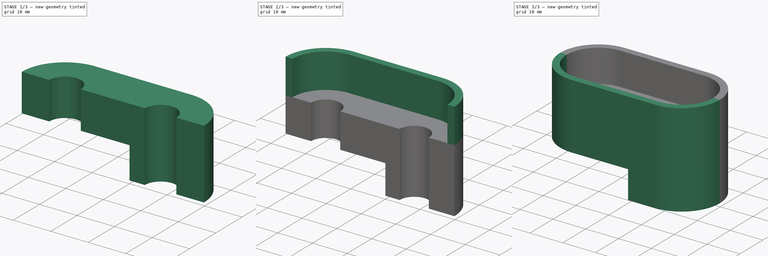
[diagram: build sequence overview — one tinted view per stage of 3, left to right]
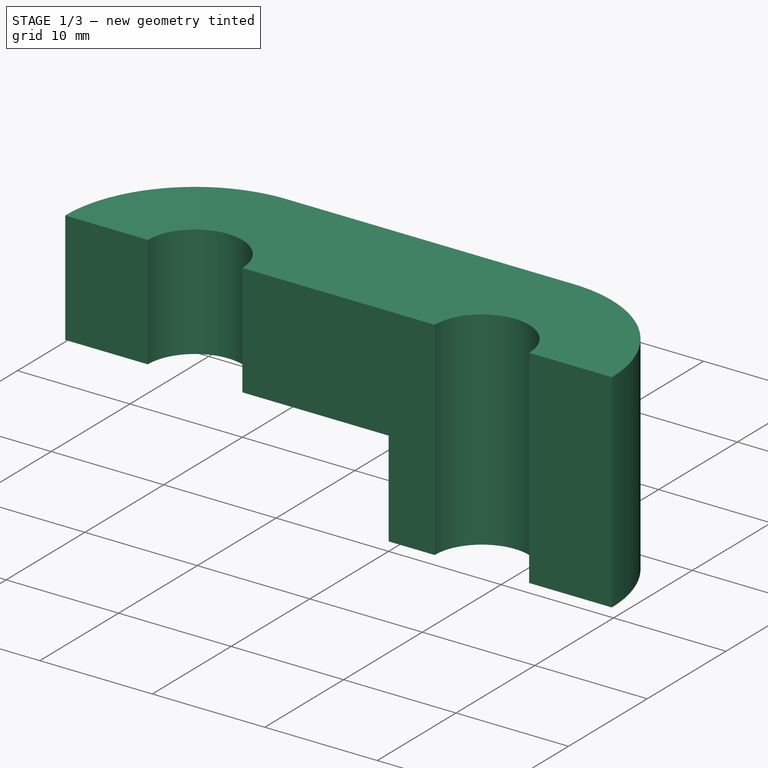
[diagram: stage 1 of 3 — iso view after this stage's code; geometry added in this stage tinted green]
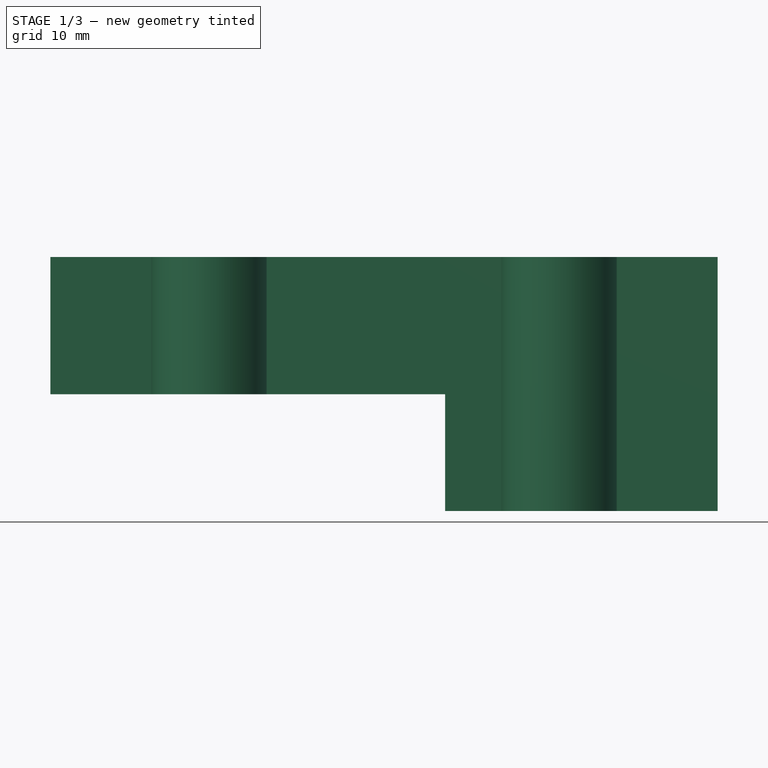
[diagram: stage 1 of 3 — front view after this stage's code; geometry added in this stage tinted green]
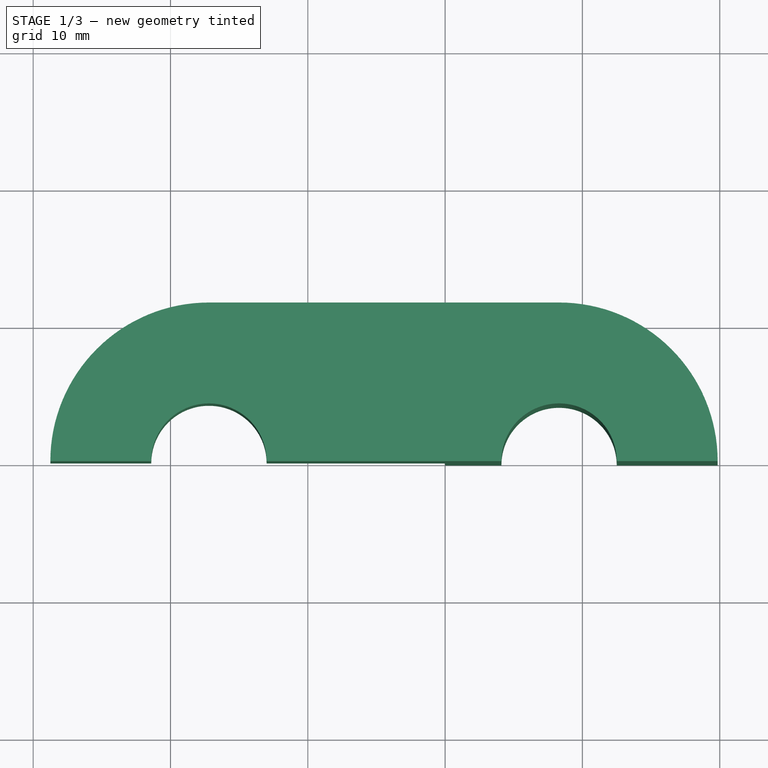
[diagram: stage 1 of 3 — top view after this stage's code; geometry added in this stage tinted green]
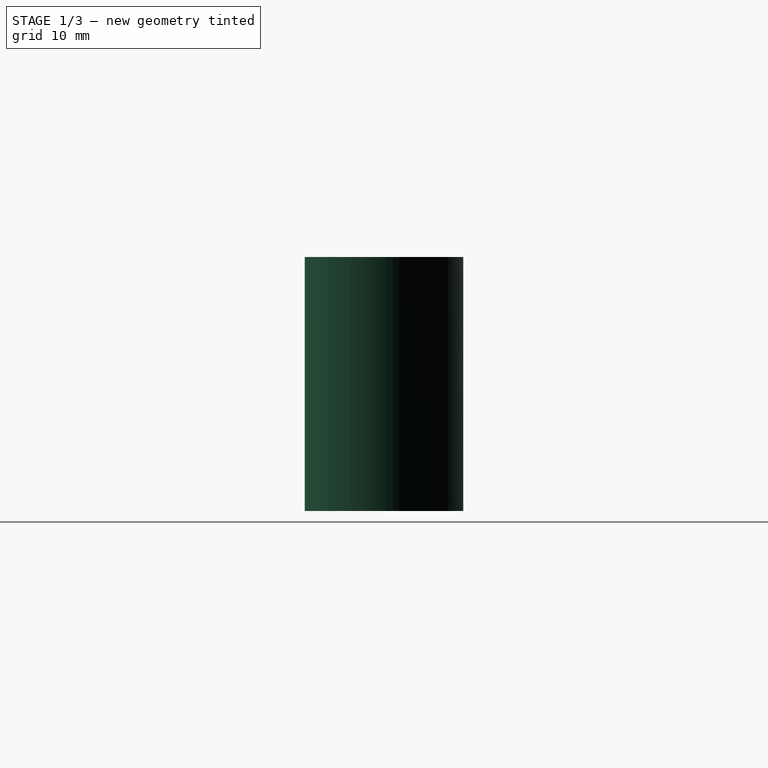
[diagram: stage 1 of 3 — right view after this stage's code; geometry added in this stage tinted green]
FCSTD DOCUMENT  (FreeCAD 0.19R24291 (Git))
Label: Крепление подшипника Стаканы
License: All rights reserved
LicenseURL: http://en.wikipedia.org/wiki/All_rights_reserved
objects: Sketcher::SketchObject×5, PartDesign::Pad×3, PartDesign::Pocket×1, PartDesign::Mirrored×1, PartDesign::Body×1
note: 15 computed .brp shape members not serialized (recipe doc carries the construction recipe); baked Part::Feature solids carry a one-line shape summary decoded from their .brp

FEATURE [Sketcher::SketchObject] Sketch
  FullyConstrained = true
  MapMode = 5
  Support = -> [XY_Plane]
  sketch-geometry (12):
    g0: ArcOfCircle CenterX=-17.2 CenterY=0 CenterZ=0 NormalX=0 NormalY=0 NormalZ=1 AngleXU=0 Radius=4.2 StartAngle=0 EndAngle=3.14159
    g1: ArcOfCircle CenterX=8.3 CenterY=0 CenterZ=0 NormalX=0 NormalY=0 NormalZ=1 AngleXU=0 Radius=4.2 StartAngle=0 EndAngle=3.14159
    g2: LineSegment StartX=0 StartY=0 StartZ=0 EndX=-13 EndY=0 EndZ=0
    g3: LineSegment StartX=-17.2 StartY=11.55 StartZ=0 EndX=0 EndY=11.55 EndZ=0
    g4: LineSegment StartX=0 StartY=11.55 StartZ=0 EndX=0 EndY=0 EndZ=0
    g5: LineSegment StartX=0 StartY=0 StartZ=0 EndX=4.1 EndY=0 EndZ=0
    g6: LineSegment StartX=8.30002 StartY=11.55 StartZ=0 EndX=0 EndY=11.55 EndZ=0
    g7: LineSegment StartX=0 StartY=11.55 StartZ=0 EndX=0 EndY=0 EndZ=0
    g8: LineSegment StartX=12.5 StartY=0 StartZ=0 EndX=19.85 EndY=0 EndZ=0
    g9: LineSegment StartX=-21.4 StartY=0 StartZ=0 EndX=-28.75 EndY=1.4e-15 EndZ=0
    g10: ArcOfCircle CenterX=-17.2 CenterY=0 CenterZ=0 NormalX=0 NormalY=0 NormalZ=1 AngleXU=0 Radius=11.55 StartAngle=1.5708 EndAngle=3.14159
    g11: ArcOfCircle CenterX=8.3 CenterY=0 CenterZ=0 NormalX=0 NormalY=0 NormalZ=1 AngleXU=0 Radius=11.55 StartAngle=0 EndAngle=1.57079
  constraints (37):
    c: PointOnObject(g0,g-1)
    c: PointOnObject(g0,g-1)
    c: PointOnObject(g0,g-1)
    c: PointOnObject(g1,g-1)
    c: PointOnObject(g1,g-1)
    c: PointOnObject(g1,g-1)
    c: Coincident(g3,g4)
    c: Coincident(g4,g2)
    c: Horizontal(g2)
    c: Horizontal(g3)
    c: Vertical(g4)
    c: Coincident(g2,g-1)
    c: Coincident(g6,g7)
    c: Coincident(g7,g5)
    c: Horizontal(g5)
    c: Horizontal(g6)
    c: Coincident(g5,g2)
    c: Coincident(g3,g6)
    c: PointOnObject(g5,g1)
    c: PointOnObject(g8,g1)
    c: Tangent(g5,g8)
    c: PointOnObject(g2,g0)
    c: PointOnObject(g9,g0)
    c: Tangent(g2,g9)
    c: Equal(g1,g0)
    c: Diameter(g1) = 8.4
    c: Distance(g1,g0) = 25.5
    c: Distance(g1,g-2) = 8.3
    c: Coincident(g10,g3)
    c: Coincident(g10,g9)
    c: Tangent(g10,g3)
    c: Coincident(g10,g0)
    c: Distance(g4) = 11.55
    c: Coincident(g11,g1)
    c: Coincident(g11,g6)
    c: Coincident(g8,g11)
    c: Tangent(g6,g11)
FEATURE [Sketcher::SketchObject] Sketch001
  FullyConstrained = true
  MapMode = 5
  Support = -> [XY_Plane]
  expr: Constraints[25] = Sketch.Constraints[25]
  expr: Constraints[26] = Sketch.Constraints[26]
  expr: Constraints[32] = Sketch.Constraints[32]
  expr: Constraints[27] = Sketch.Constraints[27]
  sketch-geometry (12):
    g0: ArcOfCircle CenterX=-17.2 CenterY=0 CenterZ=0 NormalX=0 NormalY=0 NormalZ=1 AngleXU=0 Radius=4.2 StartAngle=0 EndAngle=3.14159
    g1: ArcOfCircle CenterX=8.3 CenterY=0 CenterZ=0 NormalX=0 NormalY=0 NormalZ=1 AngleXU=0 Radius=4.2 StartAngle=0 EndAngle=3.14159
    g2: LineSegment StartX=0 StartY=0 StartZ=0 EndX=-13 EndY=0 EndZ=0
    g3: LineSegment StartX=-17.2 StartY=11.55 StartZ=0 EndX=0 EndY=11.55 EndZ=0
    g4: LineSegment StartX=0 StartY=11.55 StartZ=0 EndX=0 EndY=0 EndZ=0
    g5: LineSegment StartX=0 StartY=0 StartZ=0 EndX=4.1 EndY=0 EndZ=0
    g6: LineSegment StartX=8.30002 StartY=11.55 StartZ=0 EndX=0 EndY=11.55 EndZ=0
    g7: LineSegment StartX=0 StartY=11.55 StartZ=0 EndX=0 EndY=0 EndZ=0
    g8: LineSegment StartX=12.5 StartY=0 StartZ=0 EndX=19.85 EndY=0 EndZ=0
    g9: LineSegment StartX=-21.4 StartY=0 StartZ=0 EndX=-28.75 EndY=0 EndZ=0
    g10: ArcOfCircle CenterX=-17.2 CenterY=0 CenterZ=0 NormalX=0 NormalY=0 NormalZ=1 AngleXU=0 Radius=11.55 StartAngle=1.5708 EndAngle=3.14159
    g11: ArcOfCircle CenterX=8.3 CenterY=0 CenterZ=0 NormalX=0 NormalY=0 NormalZ=1 AngleXU=0 Radius=11.55 StartAngle=0 EndAngle=1.57079
  constraints (37):
    c: PointOnObject(g0,g-1)
    c: PointOnObject(g0,g-1)
    c: PointOnObject(g0,g-1)
    c: PointOnObject(g1,g-1)
    c: PointOnObject(g1,g-1)
    c: PointOnObject(g1,g-1)
    c: Coincident(g3,g4)
    c: Coincident(g4,g2)
    c: Horizontal(g2)
    c: Horizontal(g3)
    c: Vertical(g4)
    c: Coincident(g2,g-1)
    c: Coincident(g6,g7)
    c: Coincident(g7,g5)
    c: Horizontal(g5)
    c: Horizontal(g6)
    c: Coincident(g5,g2)
    c: Coincident(g3,g6)
    c: PointOnObject(g5,g1)
    c: PointOnObject(g8,g1)
    c: Tangent(g5,g8)
    c: PointOnObject(g2,g0)
    c: PointOnObject(g9,g0)
    c: Tangent(g2,g9)
    c: Equal(g1,g0)
    c: Diameter(g1) = 8.4
    c: Distance(g1,g0) = 25.5
    c: Distance(g1,g-2) = 8.3
    c: Coincident(g10,g3)
    c: Coincident(g10,g9)
    c: Tangent(g10,g3)
    c: Coincident(g10,g0)
    c: Distance(g4) = 11.55
    c: Coincident(g11,g1)
    c: Coincident(g11,g6)
    c: Coincident(g8,g11)
    c: Tangent(g6,g11)
FEATURE [Sketcher::SketchObject] Sketch002
  FullyConstrained = true
  MapMode = 5
  Support = -> [XY_Plane]
  expr: Constraints[25] = Sketch.Constraints[25]
  expr: Constraints[26] = Sketch.Constraints[26]
  expr: Constraints[32] = Sketch.Constraints[32]
  expr: Constraints[27] = Sketch.Constraints[27]
  sketch-geometry (12):
    g0: ArcOfCircle CenterX=-17.2 CenterY=0 CenterZ=0 NormalX=0 NormalY=0 NormalZ=1 AngleXU=0 Radius=4.2 StartAngle=0 EndAngle=3.14159
    g1: ArcOfCircle CenterX=8.3 CenterY=0 CenterZ=0 NormalX=0 NormalY=0 NormalZ=1 AngleXU=0 Radius=4.2 StartAngle=0 EndAngle=3.14159
    g2: LineSegment StartX=0 StartY=0 StartZ=0 EndX=-13 EndY=0 EndZ=0
    g3: LineSegment StartX=-17.2 StartY=11.55 StartZ=0 EndX=0 EndY=11.55 EndZ=0
    g4: LineSegment StartX=0 StartY=11.55 StartZ=0 EndX=0 EndY=0 EndZ=0
    g5: LineSegment StartX=0 StartY=0 StartZ=0 EndX=4.1 EndY=0 EndZ=0
    g6: LineSegment StartX=8.30002 StartY=11.55 StartZ=0 EndX=0 EndY=11.55 EndZ=0
    g7: LineSegment StartX=0 StartY=11.55 StartZ=0 EndX=0 EndY=0 EndZ=0
    g8: LineSegment StartX=12.5 StartY=0 StartZ=0 EndX=19.85 EndY=0 EndZ=0
    g9: LineSegment StartX=-21.4 StartY=0 StartZ=0 EndX=-28.75 EndY=1.4e-15 EndZ=0
    g10: ArcOfCircle CenterX=-17.2 CenterY=0 CenterZ=0 NormalX=0 NormalY=0 NormalZ=1 AngleXU=0 Radius=11.55 StartAngle=1.5708 EndAngle=3.14159
    g11: ArcOfCircle CenterX=8.3 CenterY=0 CenterZ=0 NormalX=0 NormalY=0 NormalZ=1 AngleXU=0 Radius=11.55 StartAngle=0 EndAngle=1.57079
  constraints (37):
    c: PointOnObject(g0,g-1)
    c: PointOnObject(g0,g-1)
    c: PointOnObject(g0,g-1)
    c: PointOnObject(g1,g-1)
    c: PointOnObject(g1,g-1)
    c: PointOnObject(g1,g-1)
    c: Coincident(g3,g4)
    c: Coincident(g4,g2)
    c: Horizontal(g2)
    c: Horizontal(g3)
    c: Vertical(g4)
    c: Coincident(g2,g-1)
    c: Coincident(g6,g7)
    c: Coincident(g7,g5)
    c: Horizontal(g5)
    c: Horizontal(g6)
    c: Coincident(g5,g2)
    c: Coincident(g3,g6)
    c: PointOnObject(g5,g1)
    c: PointOnObject(g8,g1)
    c: Tangent(g5,g8)
    c: PointOnObject(g2,g0)
    c: PointOnObject(g9,g0)
    c: Tangent(g2,g9)
    c: Equal(g1,g0)
    c: Diameter(g1) = 8.4
    c: Distance(g1,g0) = 25.5
    c: Distance(g1,g-2) = 8.3
    c: Coincident(g10,g3)
    c: Coincident(g10,g9)
    c: Tangent(g10,g3)
    c: Coincident(g10,g0)
    c: Distance(g4) = 11.55
    c: Coincident(g11,g1)
    c: Coincident(g11,g6)
    c: Coincident(g8,g11)
    c: Tangent(g6,g11)
FEATURE [PartDesign::Pad] Pad
  Direction = (1,1,1)
  Length = 18.5
  Length2 = 100
  Profile = -> Sketch001
  Reversed = true
  Type = 0
FEATURE [PartDesign::Pad] Pad001
  BaseFeature = -> Pad
  Direction = (1,1,1)
  Length = 10
  Length2 = 100
  Profile = -> Sketch002
  Reversed = true
  Type = 0
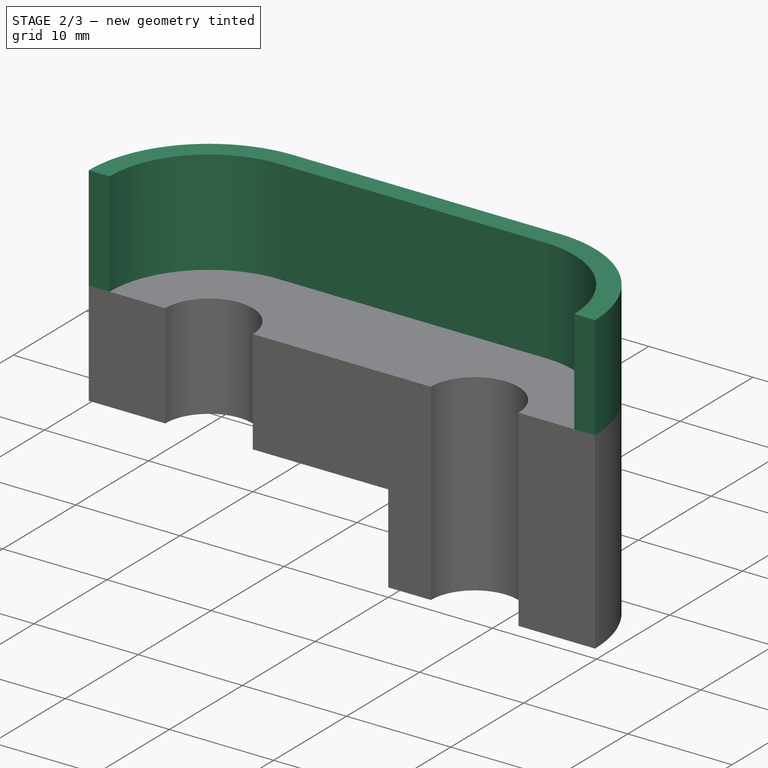
[diagram: stage 2 of 3 — iso view after this stage's code; geometry added in this stage tinted green]
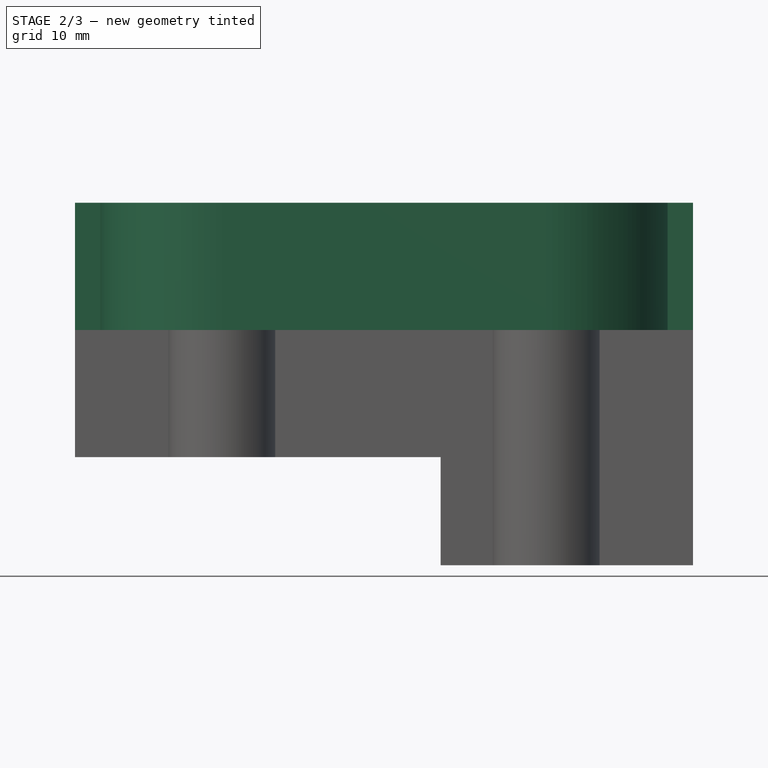
[diagram: stage 2 of 3 — front view after this stage's code; geometry added in this stage tinted green]
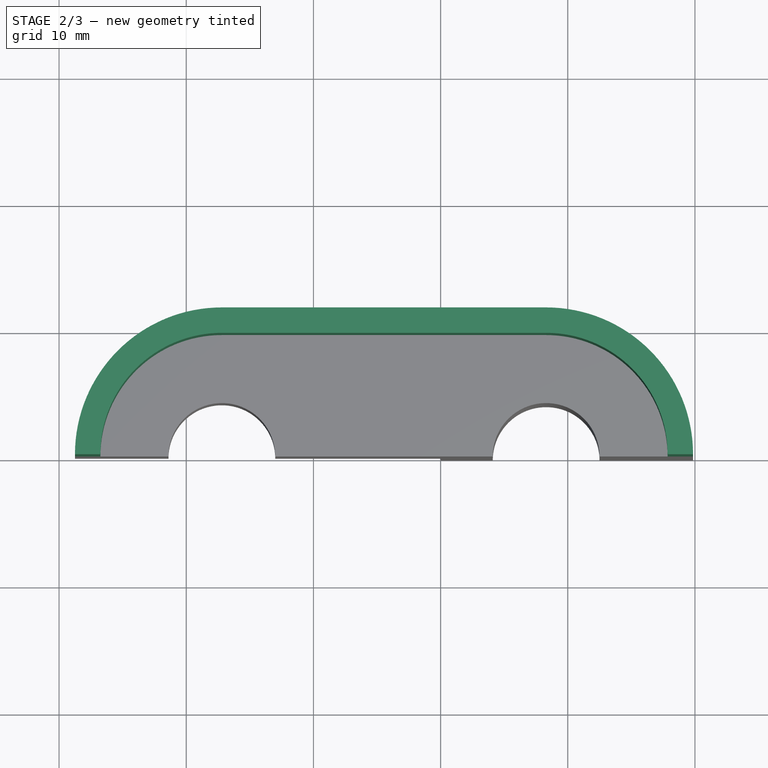
[diagram: stage 2 of 3 — top view after this stage's code; geometry added in this stage tinted green]
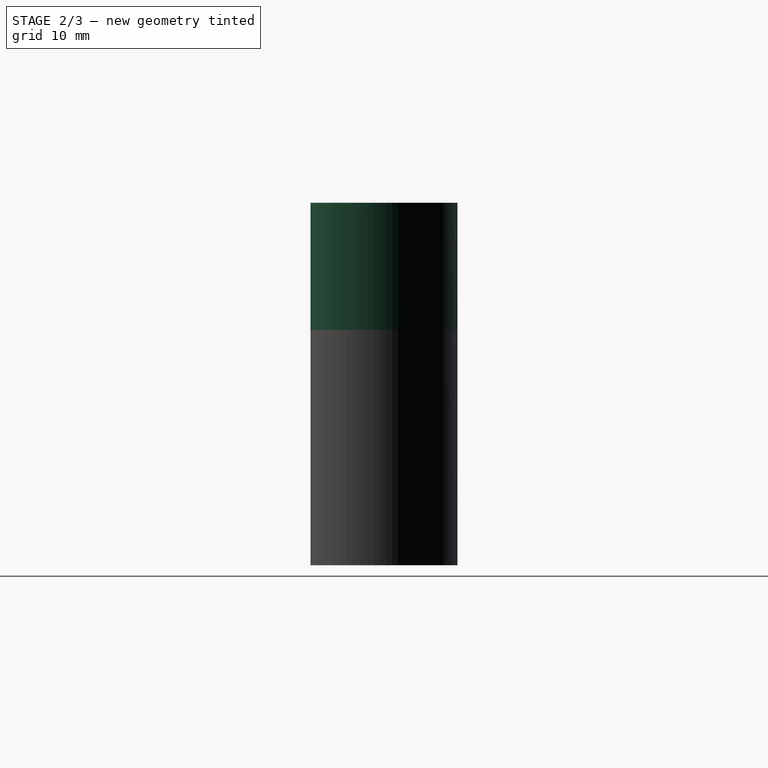
[diagram: stage 2 of 3 — right view after this stage's code; geometry added in this stage tinted green]
FEATURE [Sketcher::SketchObject] Sketch003
  FullyConstrained = true
  MapMode = 5
  Support = -> [XY_Plane]
  expr: Constraints[25] = Sketch.Constraints[25]
  expr: Constraints[26] = Sketch.Constraints[26]
  expr: Constraints[32] = Sketch.Constraints[32]
  expr: Constraints[27] = Sketch.Constraints[27]
  sketch-geometry (17):
    g0: ArcOfCircle CenterX=-17.2 CenterY=0 CenterZ=0 NormalX=0 NormalY=0 NormalZ=1 AngleXU=0 Radius=4.2 StartAngle=0 EndAngle=3.14159
    g1: ArcOfCircle CenterX=8.3 CenterY=0 CenterZ=0 NormalX=0 NormalY=0 NormalZ=1 AngleXU=0 Radius=4.2 StartAngle=0 EndAngle=3.14159
    g2: LineSegment StartX=0 StartY=0 StartZ=0 EndX=-13 EndY=0 EndZ=0
    g3: LineSegment StartX=-17.2 StartY=11.55 StartZ=0 EndX=0 EndY=11.55 EndZ=0
    g4: LineSegment StartX=0 StartY=11.55 StartZ=0 EndX=0 EndY=0 EndZ=0
    g5: LineSegment StartX=0 StartY=0 StartZ=0 EndX=4.1 EndY=0 EndZ=0
    g6: LineSegment StartX=8.3 StartY=11.55 StartZ=0 EndX=0 EndY=11.55 EndZ=0
    g7: LineSegment StartX=0 StartY=11.55 StartZ=0 EndX=0 EndY=0 EndZ=0
    g8: LineSegment StartX=12.5 StartY=0 StartZ=0 EndX=19.85 EndY=0 EndZ=0
    g9: LineSegment StartX=-21.4 StartY=0 StartZ=0 EndX=-28.75 EndY=1.4e-15 EndZ=0
    g10: ArcOfCircle CenterX=-17.2 CenterY=0 CenterZ=0 NormalX=0 NormalY=0 NormalZ=1 AngleXU=0 Radius=11.55 StartAngle=1.5708 EndAngle=3.14159
    g11: ArcOfCircle CenterX=8.3 CenterY=0 CenterZ=0 NormalX=0 NormalY=0 NormalZ=1 AngleXU=0 Radius=11.55 StartAngle=0 EndAngle=1.5708
    g12: ArcOfCircle CenterX=-17.2 CenterY=0 CenterZ=0 NormalX=0 NormalY=0 NormalZ=1 AngleXU=0 Radius=9.55 StartAngle=1.5708 EndAngle=3.14159
    g13: ArcOfCircle CenterX=8.3 CenterY=0 CenterZ=0 NormalX=0 NormalY=0 NormalZ=1 AngleXU=0 Radius=9.55 StartAngle=0 EndAngle=1.5708
    g14: LineSegment StartX=-17.2 StartY=9.55 StartZ=0 EndX=8.3 EndY=9.55 EndZ=0
    g15: LineSegment StartX=-28.75 StartY=1.4e-15 StartZ=0 EndX=-26.75 EndY=0 EndZ=0
    g16: LineSegment StartX=17.85 StartY=0 StartZ=0 EndX=19.85 EndY=0 EndZ=0
  constraints (51):
    c: PointOnObject(g0,g-1)
    c: PointOnObject(g0,g-1)
    c: PointOnObject(g0,g-1)
    c: PointOnObject(g1,g-1)
    c: PointOnObject(g1,g-1)
    c: PointOnObject(g1,g-1)
    c: Coincident(g3,g4)
    c: Coincident(g4,g2)
    c: Horizontal(g2)
    c: Horizontal(g3)
    c: Vertical(g4)
    c: Coincident(g2,g-1)
    c: Coincident(g6,g7)
    c: Coincident(g7,g5)
    c: Horizontal(g5)
    c: Horizontal(g6)
    c: Coincident(g5,g2)
    c: Coincident(g3,g6)
    c: PointOnObject(g5,g1)
    c: PointOnObject(g8,g1)
    c: Tangent(g5,g8)
    c: PointOnObject(g2,g0)
    c: PointOnObject(g9,g0)
    c: Tangent(g2,g9)
    c: Equal(g1,g0)
    c: Diameter(g1) = 8.4
    c: Distance(g1,g0) = 25.5
    c: Distance(g1,g-2) = 8.3
    c: Coincident(g10,g3)
    c: Coincident(g10,g9)
    c: Tangent(g10,g3)
    c: Coincident(g10,g0)
    c: Distance(g4) = 11.55
    c: Coincident(g11,g1)
    c: Coincident(g11,g6)
    c: Coincident(g8,g11)
    c: Tangent(g6,g11)
    c: Coincident(g12,g10)
    c: PointOnObject(g12,g9)
    c: Coincident(g13,g11)
    c: PointOnObject(g13,g8)
    c: Coincident(g14,g12)
    c: Coincident(g14,g13)
    c: Horizontal(g14)
    c: Tangent(g13,g14)
    c: Tangent(g14,g12)
    c: Coincident(g15,g10)
    c: Coincident(g15,g12)
    c: Coincident(g16,g13)
    c: Coincident(g16,g11)
    c: Distance(g16) = 2
FEATURE [PartDesign::Pad] Pad002
  BaseFeature = -> Pad001
  Direction = (1,1,1)
  Length = 10
  Length2 = 100
  Profile = -> Sketch003
  Type = 0
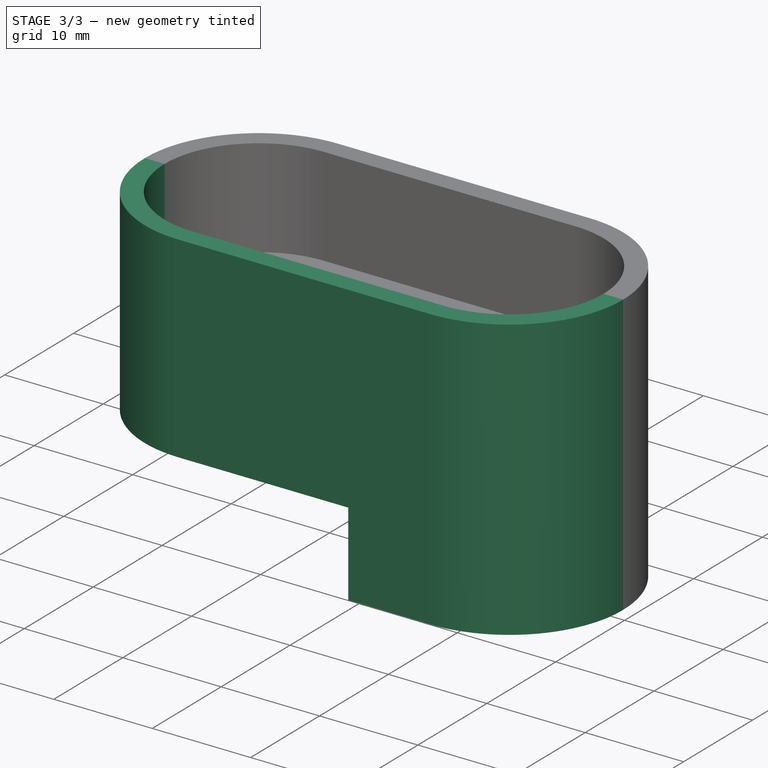
[diagram: stage 3 of 3 — iso view after this stage's code; geometry added in this stage tinted green]
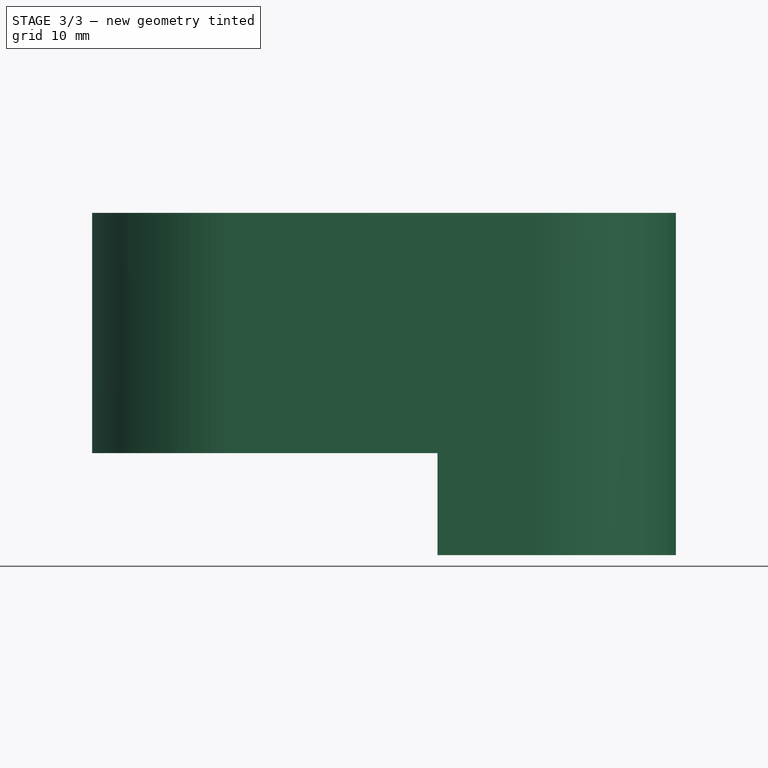
[diagram: stage 3 of 3 — front view after this stage's code; geometry added in this stage tinted green]
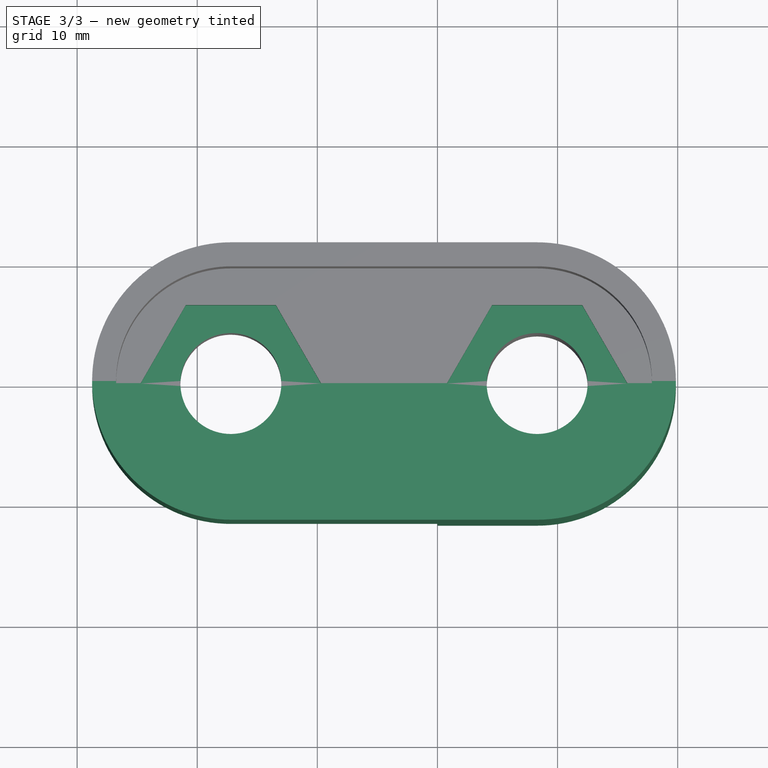
[diagram: stage 3 of 3 — top view after this stage's code; geometry added in this stage tinted green]
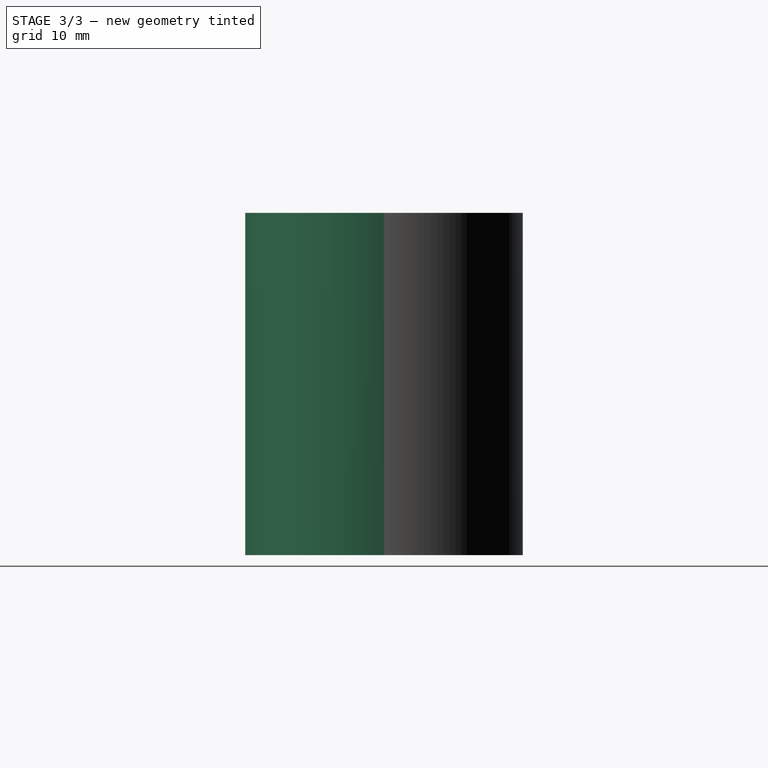
[diagram: stage 3 of 3 — right view after this stage's code; geometry added in this stage tinted green]
FEATURE [Sketcher::SketchObject] Sketch004
  FullyConstrained = true
  MapMode = 5
  Support = -> [XY_Plane]
  expr: Constraints[25] = Sketch.Constraints[25]
  expr: Constraints[26] = Sketch.Constraints[26]
  expr: Constraints[32] = Sketch.Constraints[32]
  expr: Constraints[27] = Sketch.Constraints[27]
  sketch-geometry (26):
    g0: ArcOfCircle CenterX=-17.2 CenterY=0 CenterZ=0 NormalX=0 NormalY=0 NormalZ=1 AngleXU=0 Radius=4.2 StartAngle=0 EndAngle=3.14159
    g1: ArcOfCircle CenterX=8.3 CenterY=0 CenterZ=0 NormalX=0 NormalY=0 NormalZ=1 AngleXU=0 Radius=4.2 StartAngle=0 EndAngle=3.14159
    g2: LineSegment StartX=0 StartY=0 StartZ=0 EndX=-13 EndY=0 EndZ=0
    g3: LineSegment StartX=-17.2 StartY=11.55 StartZ=0 EndX=0 EndY=11.55 EndZ=0
    g4: LineSegment StartX=0 StartY=11.55 StartZ=0 EndX=0 EndY=0 EndZ=0
    g5: LineSegment StartX=0 StartY=0 StartZ=0 EndX=4.1 EndY=0 EndZ=0
    g6: LineSegment StartX=8.3 StartY=11.55 StartZ=0 EndX=0 EndY=11.55 EndZ=0
    g7: LineSegment StartX=0 StartY=11.55 StartZ=0 EndX=0 EndY=0 EndZ=0
    g8: LineSegment StartX=12.5 StartY=0 StartZ=0 EndX=19.85 EndY=0 EndZ=0
    g9: LineSegment StartX=-21.4 StartY=0 StartZ=0 EndX=-28.75 EndY=1.4e-15 EndZ=0
    g10: ArcOfCircle CenterX=-17.2 CenterY=0 CenterZ=0 NormalX=0 NormalY=0 NormalZ=1 AngleXU=0 Radius=11.55 StartAngle=1.5708 EndAngle=3.14159
    g11: ArcOfCircle CenterX=8.3 CenterY=0 CenterZ=0 NormalX=0 NormalY=0 NormalZ=1 AngleXU=0 Radius=11.55 StartAngle=0 EndAngle=1.5708
    g12: LineSegment StartX=-9.69445 StartY=0 StartZ=0 EndX=-13.4472 EndY=6.5 EndZ=0
    g13: LineSegment StartX=-13.4472 StartY=6.5 StartZ=0 EndX=-20.9528 EndY=6.5 EndZ=0
    g14: LineSegment StartX=-20.9528 StartY=6.5 StartZ=0 EndX=-24.7056 EndY=0 EndZ=0
    g15: LineSegment StartX=-24.7056 StartY=0 StartZ=0 EndX=-20.9528 EndY=-6.5 EndZ=0
    g16: LineSegment StartX=-20.9528 StartY=-6.5 StartZ=0 EndX=-13.4472 EndY=-6.5 EndZ=0
    g17: LineSegment StartX=-13.4472 StartY=-6.5 StartZ=0 EndX=-9.69445 EndY=0 EndZ=0
    g18: Circle CenterX=-17.2 CenterY=0 CenterZ=0 NormalX=0 NormalY=0 NormalZ=1 AngleXU=0 Radius=7.50555
    g19: LineSegment StartX=15.8056 StartY=0 StartZ=0 EndX=12.0528 EndY=6.5 EndZ=0
    g20: LineSegment StartX=12.0528 StartY=6.5 StartZ=0 EndX=4.54722 EndY=6.5 EndZ=0
    g21: LineSegment StartX=4.54722 StartY=6.5 StartZ=0 EndX=0.794447 EndY=9e-16 EndZ=0
    g22: LineSegment StartX=0.794447 StartY=9e-16 StartZ=0 EndX=4.54722 EndY=-6.5 EndZ=0
    g23: LineSegment StartX=4.54722 StartY=-6.5 StartZ=0 EndX=12.0528 EndY=-6.5 EndZ=0
    g24: LineSegment StartX=12.0528 StartY=-6.5 StartZ=0 EndX=15.8056 EndY=0 EndZ=0
    g25: Circle CenterX=8.3 CenterY=0 CenterZ=0 NormalX=0 NormalY=0 NormalZ=1 AngleXU=0 Radius=7.50555
  constraints (69):
    c: PointOnObject(g0,g-1)
    c: PointOnObject(g0,g-1)
    c: PointOnObject(g0,g-1)
    c: PointOnObject(g1,g-1)
    c: PointOnObject(g1,g-1)
    c: PointOnObject(g1,g-1)
    c: Coincident(g3,g4)
    c: Coincident(g4,g2)
    c: Horizontal(g2)
    c: Horizontal(g3)
    c: Vertical(g4)
    c: Coincident(g2,g-1)
    c: Coincident(g6,g7)
    c: Coincident(g7,g5)
    c: Horizontal(g5)
    c: Horizontal(g6)
    c: Coincident(g5,g2)
    c: Coincident(g3,g6)
    c: PointOnObject(g5,g1)
    c: PointOnObject(g8,g1)
    c: Tangent(g5,g8)
    c: PointOnObject(g2,g0)
    c: PointOnObject(g9,g0)
    c: Tangent(g2,g9)
    c: Equal(g1,g0)
    c: Diameter(g1) = 8.4
    c: Distance(g1,g0) = 25.5
    c: Distance(g1,g-2) = 8.3
    c: Coincident(g10,g3)
    c: Coincident(g10,g9)
    c: Tangent(g10,g3)
    c: Coincident(g10,g0)
    c: Distance(g4) = 11.55
    c: Coincident(g11,g1)
    c: Coincident(g11,g6)
    c: Coincident(g8,g11)
    c: Tangent(g6,g11)
    c: Coincident(g12,g13)
    c: Coincident(g13,g14)
    c: Coincident(g14,g15)
    c: Coincident(g15,g16)
    c: Coincident(g16,g17)
    c: Coincident(g17,g12)
    c: Equal(g12, g13-g17) x5
    c: PointOnObject(g12,g18)
    c: PointOnObject(g13,g18)
    c: PointOnObject(g14,g18)
    c: PointOnObject(g15,g18)
    c: PointOnObject(g16,g18)
    c: PointOnObject(g17,g18)
    c: Coincident(g18,g0)
    c: PointOnObject(g17,g2)
    c: Coincident(g19,g20)
    c: Coincident(g20,g21)
    c: Coincident(g21,g22)
    c: Coincident(g22,g23)
    c: Coincident(g23,g24)
    c: Coincident(g24,g19)
    c: Equal(g19, g20-g24) x5
    c: PointOnObject(g19,g25)
    c: PointOnObject(g20,g25)
    c: PointOnObject(g21,g25)
    c: PointOnObject(g22,g25)
    c: PointOnObject(g23,g25)
    c: PointOnObject(g24,g25)
    c: Coincident(g25,g1)
    c: PointOnObject(g24,g8)
    c: Equal(g20,g13)
    c: Distance(g23,g19) = 13
FEATURE [PartDesign::Pocket] Pocket
  BaseFeature = -> Pad002
  Length = 2
  Length2 = 100
  Profile = -> Sketch004
  Type = 0
FEATURE [PartDesign::Mirrored] Mirrored
  BaseFeature = -> Pocket
  MirrorPlane = -> Sketch001 [H_Axis]
  Originals = -> [Pad,Pad001,Pad002,Pocket]
FEATURE [PartDesign::Body] Body
  Group = -> [Sketch,Sketch001,Sketch002,Pad,Pad001,Sketch003,Pad002,Sketch004,Pocket,Mirrored]
  Origin = -> Origin
  Tip = -> Mirrored
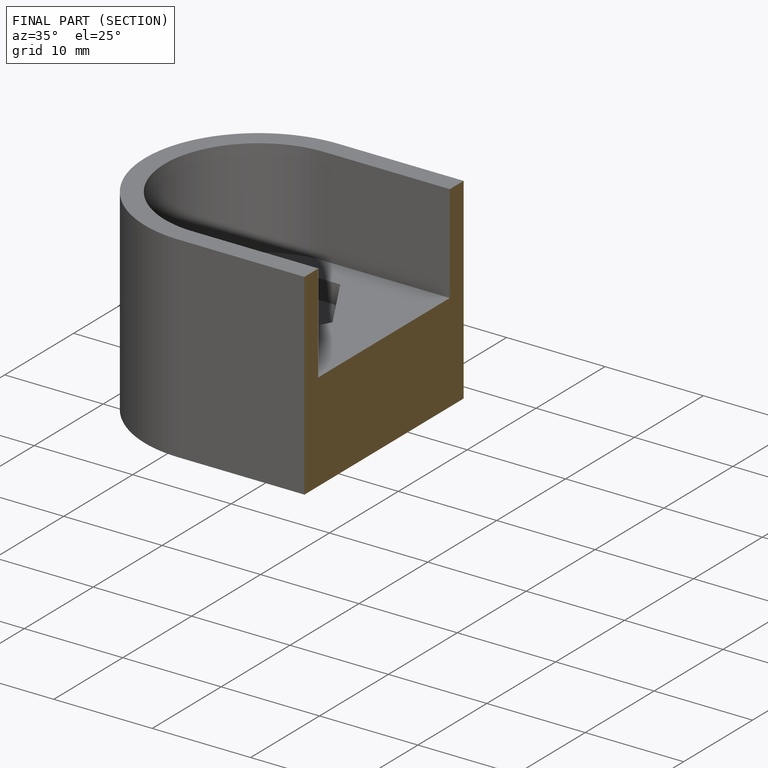
[diagram: finished part — half-section view (interior)]
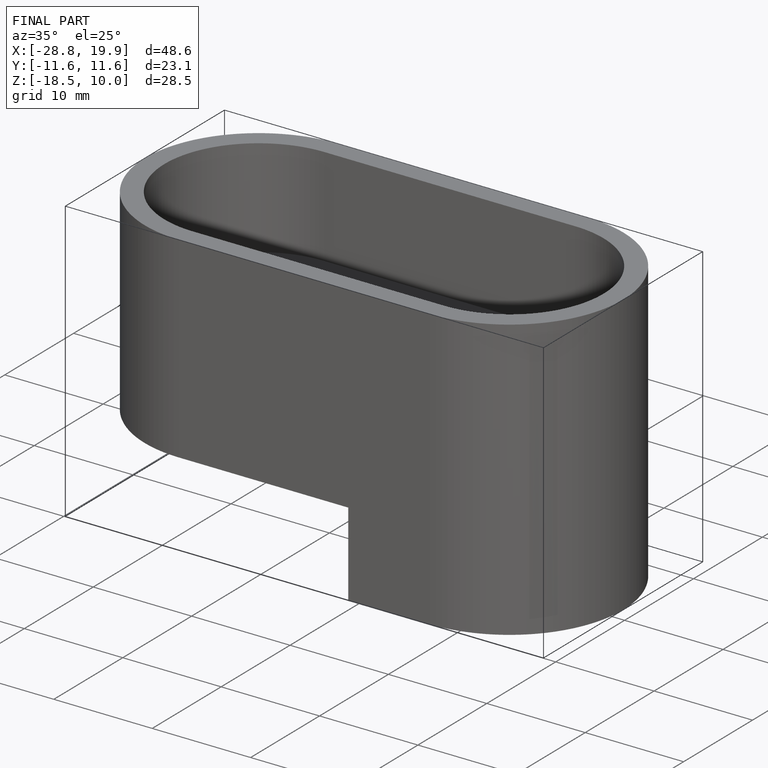
[diagram: finished part — iso view with bounding-box wireframe]
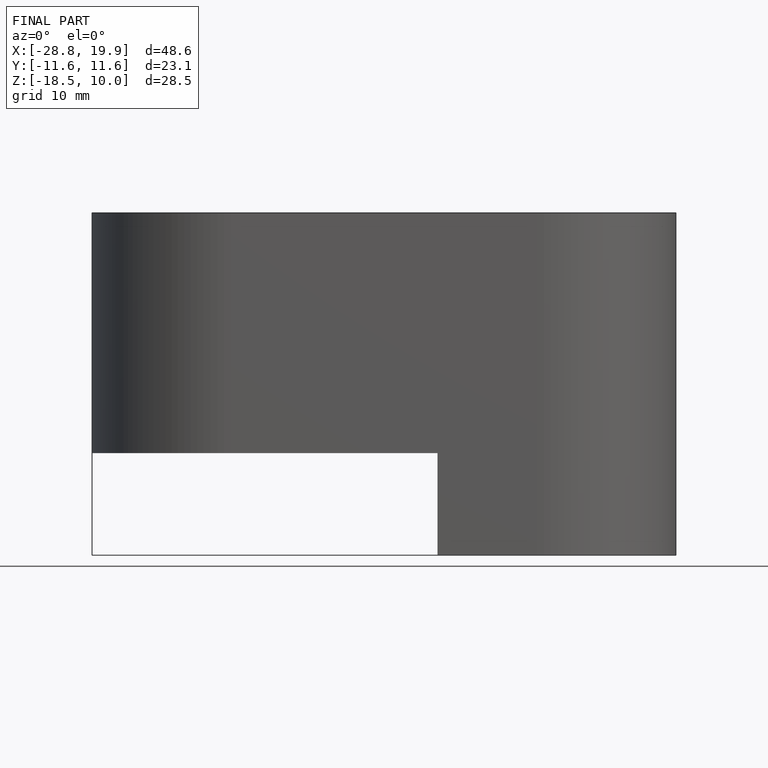
[diagram: finished part — front view with bounding-box wireframe]
